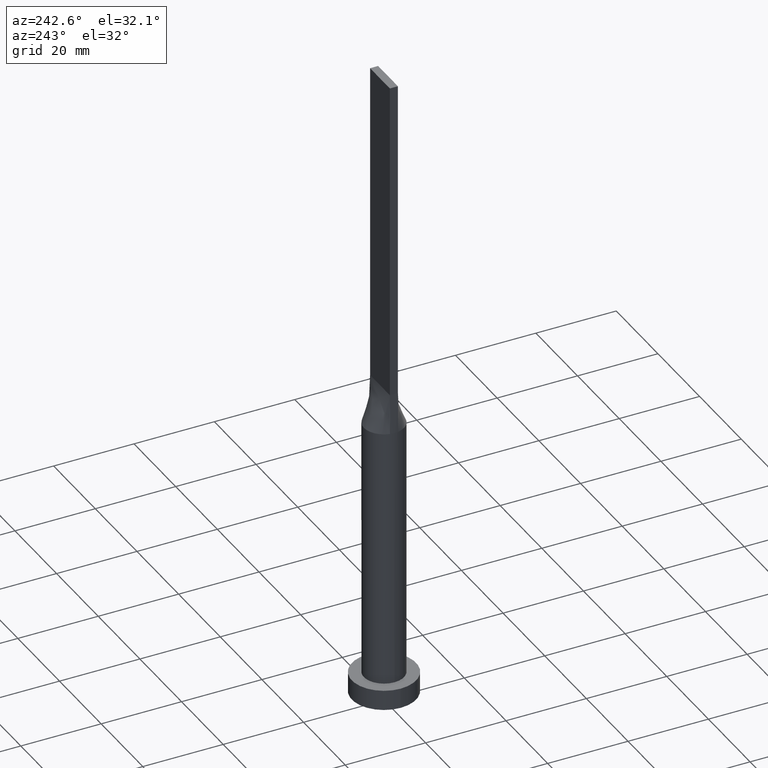
[diagram: clean part render]
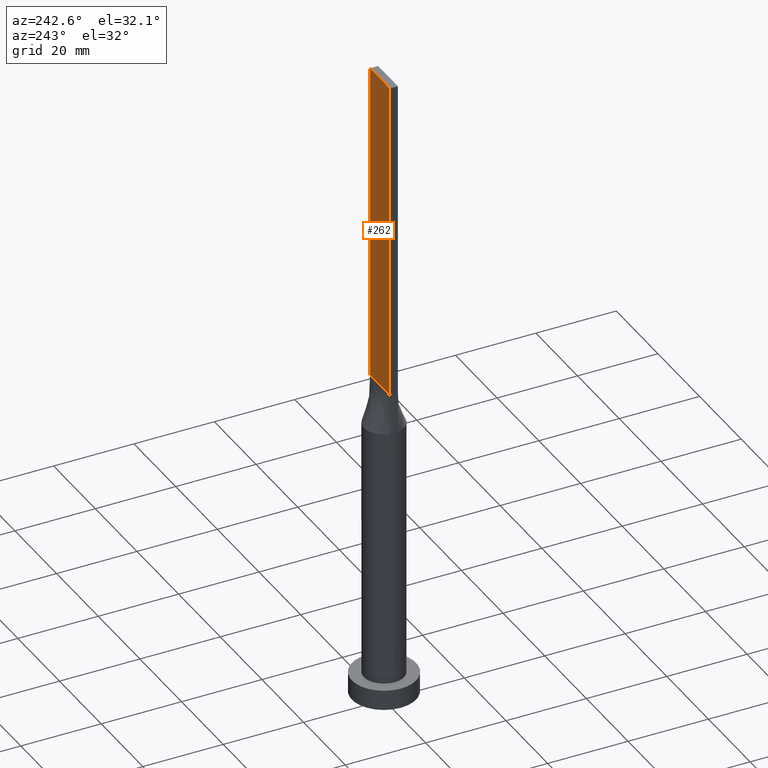
[diagram: same view with one face highlighted and labeled with its STEP entity id]
A machine part, auxiliary view. The second image highlights one B-rep face of the part: STEP entity #262.
In plain terms, the highlighted planar face has unit normal (0, -1, 0).
Its self-contained STEP definition (entity closure, byte-faithful):
#16 = EDGE_CURVE ( 'NONE', #416, #378, #157, .T. ) ;
#27 = CARTESIAN_POINT ( 'NONE',  ( 4.750000000000000000, 1.000000000000000000, 160.0000000000000000 ) ) ;
#41 = CARTESIAN_POINT ( 'NONE',  ( -4.750000000000000000, 1.000000000000000000, 160.0000000000000000 ) ) ;
#54 = VERTEX_POINT ( 'NONE', #455 ) ;
#55 = EDGE_CURVE ( 'NONE', #550, #54, #494, .T. ) ;
#60 = PLANE ( 'NONE',  #423 ) ;
#66 = FACE_OUTER_BOUND ( 'NONE', #250, .T. ) ;
#78 = VECTOR ( 'NONE', #498, 1000.000000000000000 ) ;
#89 = DIRECTION ( 'NONE',  ( -1.000000000000000000, -0.000000000000000000, -0.000000000000000000 ) ) ;
#107 = ORIENTED_EDGE ( 'NONE', *, *, #16, .T. ) ;
#120 = DIRECTION ( 'NONE',  ( -0.000000000000000000, -0.000000000000000000, -1.000000000000000000 ) ) ;
#124 = LINE ( 'NONE', #445, #78 ) ;
#126 = CARTESIAN_POINT ( 'NONE',  ( 4.750000000000000000, 1.000000000000000000, 80.00000000000000000 ) ) ;
#132 = VECTOR ( 'NONE', #89, 1000.000000000000000 ) ;
#157 = LINE ( 'NONE', #529, #296 ) ;
#160 = ORIENTED_EDGE ( 'NONE', *, *, #55, .F. ) ;
#163 = EDGE_CURVE ( 'NONE', #378, #54, #599, .T. ) ;
#200 = ORIENTED_EDGE ( 'NONE', *, *, #373, .F. ) ;
#248 = VECTOR ( 'NONE', #360, 1000.000000000000000 ) ;
#250 = EDGE_LOOP ( 'NONE', ( #257, #160, #200, #107 ) ) ;
#257 = ORIENTED_EDGE ( 'NONE', *, *, #163, .T. ) ;
#262 = ADVANCED_FACE ( 'NONE', ( #66 ), #60, .F. ) ;
#296 = VECTOR ( 'NONE', #120, 1000.000000000000000 ) ;
#315 = CARTESIAN_POINT ( 'NONE',  ( -4.750000000000000000, 1.000000000000000000, 160.0000000000000000 ) ) ;
#360 = DIRECTION ( 'NONE',  ( -0.000000000000000000, -0.000000000000000000, -1.000000000000000000 ) ) ;
#373 = EDGE_CURVE ( 'NONE', #416, #550, #124, .T. ) ;
#378 = VERTEX_POINT ( 'NONE', #126 ) ;
#416 = VERTEX_POINT ( 'NONE', #27 ) ;
#423 = AXIS2_PLACEMENT_3D ( 'NONE', #526, #472, #426 ) ;
#426 = DIRECTION ( 'NONE',  ( 0.000000000000000000, -0.000000000000000000, -1.000000000000000000 ) ) ;
#445 = CARTESIAN_POINT ( 'NONE',  ( 4.750000000000000000, 1.000000000000000000, 160.0000000000000000 ) ) ;
#455 = CARTESIAN_POINT ( 'NONE',  ( -4.750000000000000000, 1.000000000000000000, 80.00000000000000000 ) ) ;
#472 = DIRECTION ( 'NONE',  ( 0.000000000000000000, -1.000000000000000000, 0.000000000000000000 ) ) ;
#494 = LINE ( 'NONE', #315, #248 ) ;
#498 = DIRECTION ( 'NONE',  ( -1.000000000000000000, 0.000000000000000000, 0.000000000000000000 ) ) ;
#526 = CARTESIAN_POINT ( 'NONE',  ( 4.750000000000000000, 1.000000000000000000, 160.0000000000000000 ) ) ;
#529 = CARTESIAN_POINT ( 'NONE',  ( 4.750000000000000000, 1.000000000000000000, 160.0000000000000000 ) ) ;
#550 = VERTEX_POINT ( 'NONE', #41 ) ;
#596 = CARTESIAN_POINT ( 'NONE',  ( -4.750000000000000000, 1.000000000000000000, 80.00000000000000000 ) ) ;
#599 = LINE ( 'NONE', #596, #132 ) ;